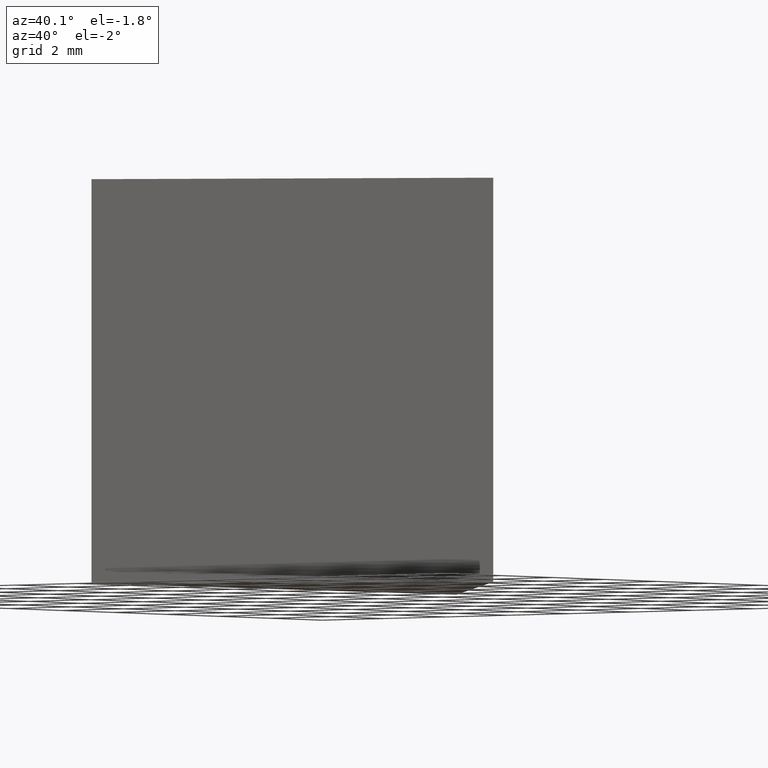
[diagram: clean part render]
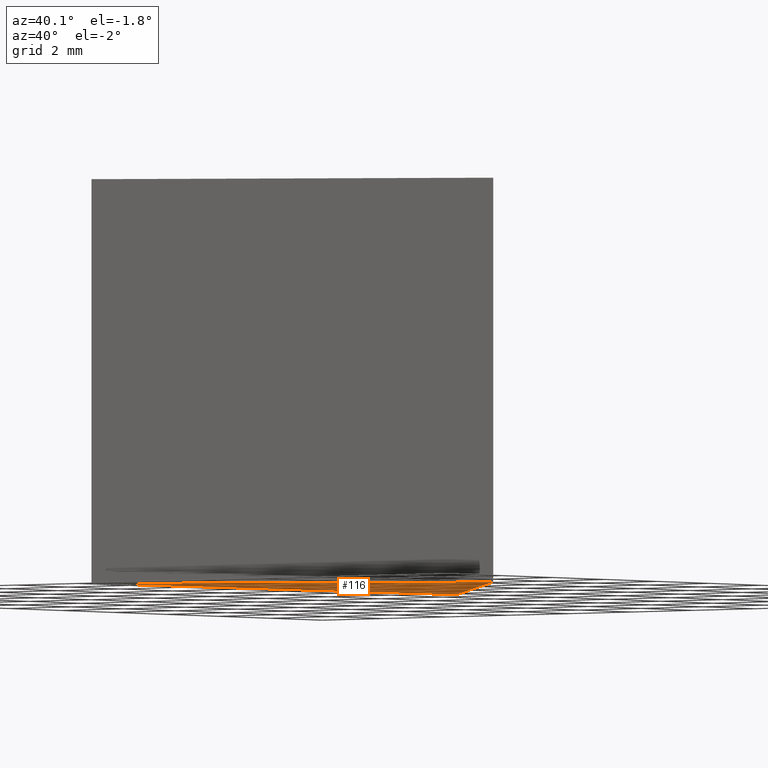
[diagram: same view with one face highlighted and labeled with its STEP entity id]
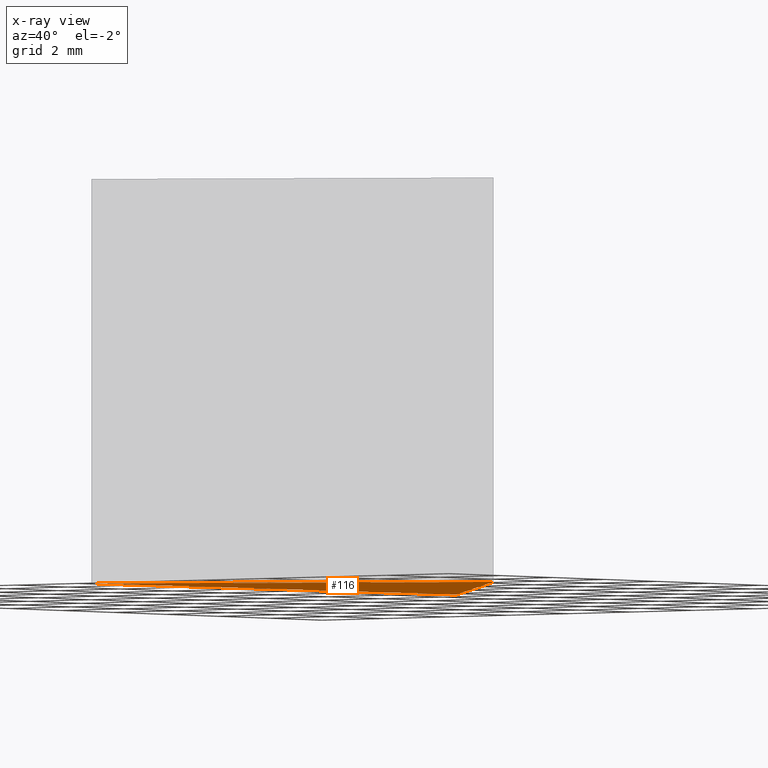
[diagram: x-ray of the same camera — body ghosted, the highlighted face saturated]
A machine part, auxiliary view. The second image highlights one B-rep face of the part: STEP entity #116.
The next image is the same camera in x-ray: the body ghosted, the highlighted face saturated — about 0% of this face is hidden behind the body in this view.
In plain terms, the highlighted planar face has unit normal (0, 0, -1).
Its self-contained STEP definition (entity closure, byte-faithful):
#5 = EDGE_CURVE ( 'NONE', #114, #94, #169, .T. ) ;
#10 = CARTESIAN_POINT ( 'NONE',  ( 9.028570851696299500, 6.361486365058052400, 0.0000000000000000000 ) ) ;
#24 = CARTESIAN_POINT ( 'NONE',  ( 0.6861709744360347000, 0.8474711050240408800, 0.0000000000000000000 ) ) ;
#34 = ORIENTED_EDGE ( 'NONE', *, *, #5, .F. ) ;
#35 = VECTOR ( 'NONE', #140, 1000.000000000000000 ) ;
#36 = PLANE ( 'NONE',  #111 ) ;
#39 = DIRECTION ( 'NONE',  ( -0.7109728236074625000, 0.7032194850056645600, 0.0000000000000000000 ) ) ;
#43 = VECTOR ( 'NONE', #39, 999.9999999999998900 ) ;
#48 = DIRECTION ( 'NONE',  ( -0.09777970958415410600, -0.9952080829623716200, -0.0000000000000000000 ) ) ;
#53 = CARTESIAN_POINT ( 'NONE',  ( 1.918842615621676000, 13.39368121511469800, 0.0000000000000000000 ) ) ;
#61 = EDGE_LOOP ( 'NONE', ( #143, #34, #166 ) ) ;
#66 = CARTESIAN_POINT ( 'NONE',  ( 0.0000000000000000000, 0.0000000000000000000, 0.0000000000000000000 ) ) ;
#70 = LINE ( 'NONE', #10, #35 ) ;
#77 = VECTOR ( 'NONE', #48, 999.9999999999998900 ) ;
#90 = DIRECTION ( 'NONE',  ( -1.000000000000000000, 0.0000000000000000000, 0.0000000000000000000 ) ) ;
#93 = FACE_OUTER_BOUND ( 'NONE', #61, .T. ) ;
#94 = VERTEX_POINT ( 'NONE', #157 ) ;
#111 = AXIS2_PLACEMENT_3D ( 'NONE', #66, #160, #90 ) ;
#114 = VERTEX_POINT ( 'NONE', #53 ) ;
#116 = ADVANCED_FACE ( 'NONE', ( #93 ), #36, .T. ) ;
#119 = CARTESIAN_POINT ( 'NONE',  ( 9.028570851696299500, 6.361486365058052400, 0.0000000000000000000 ) ) ;
#121 = EDGE_CURVE ( 'NONE', #152, #114, #136, .T. ) ;
#126 = CARTESIAN_POINT ( 'NONE',  ( 9.028570851696299500, 6.361486365058052400, 0.0000000000000000000 ) ) ;
#130 = EDGE_CURVE ( 'NONE', #94, #152, #70, .T. ) ;
#136 = LINE ( 'NONE', #119, #43 ) ;
#140 = DIRECTION ( 'NONE',  ( 0.8342399877260263700, 0.5514015260034012000, -0.0000000000000000000 ) ) ;
#143 = ORIENTED_EDGE ( 'NONE', *, *, #130, .F. ) ;
#152 = VERTEX_POINT ( 'NONE', #126 ) ;
#157 = CARTESIAN_POINT ( 'NONE',  ( 0.6861709744360347000, 0.8474711050240408800, 0.0000000000000000000 ) ) ;
#160 = DIRECTION ( 'NONE',  ( 0.0000000000000000000, 0.0000000000000000000, -1.000000000000000000 ) ) ;
#166 = ORIENTED_EDGE ( 'NONE', *, *, #121, .F. ) ;
#169 = LINE ( 'NONE', #24, #77 ) ;